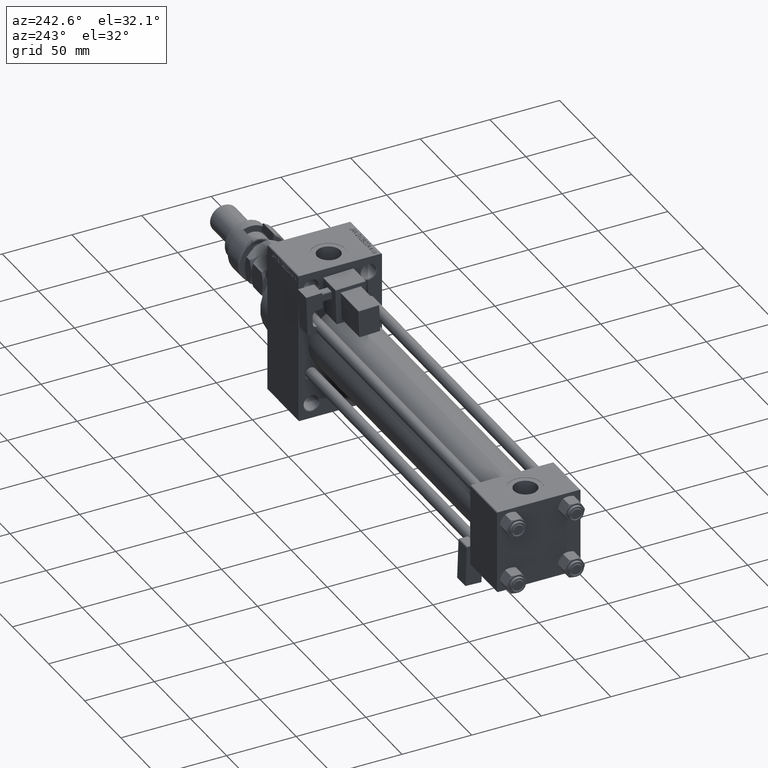
[diagram: clean part render]
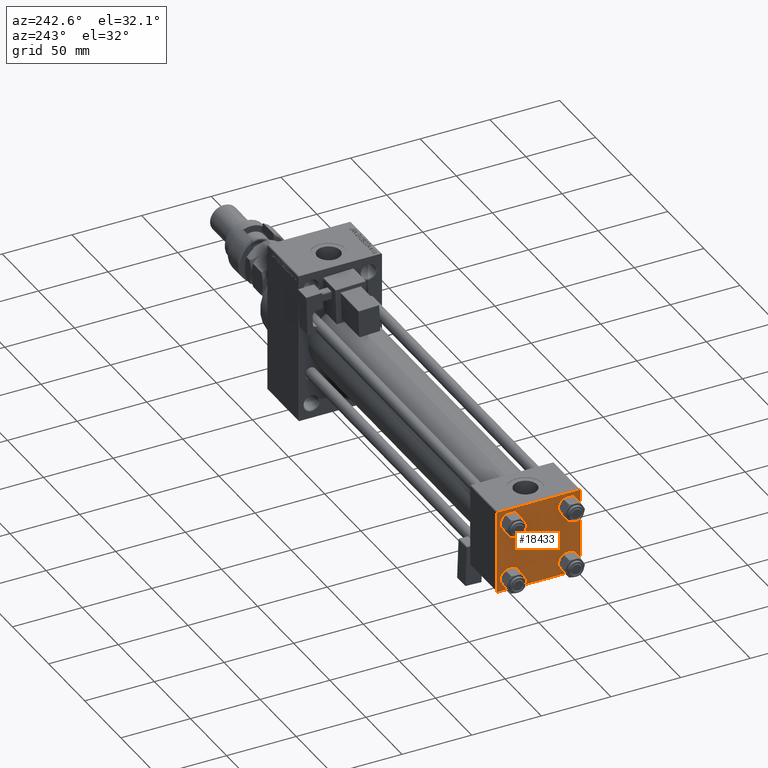
[diagram: same view with one face highlighted and labeled with its STEP entity id]
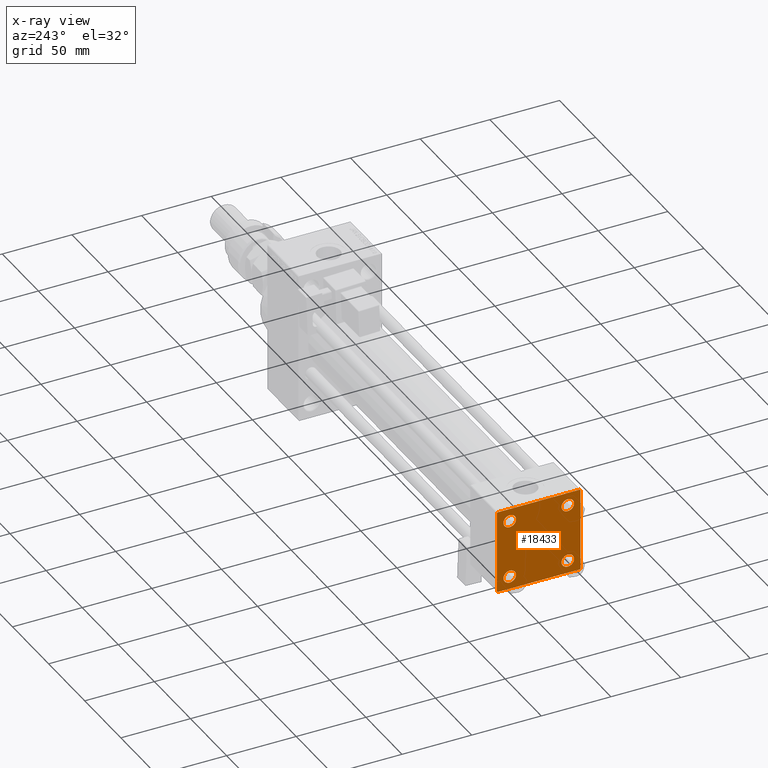
[diagram: x-ray of the same camera — body ghosted, the highlighted face saturated]
A machine part, auxiliary view. The second image highlights one B-rep face of the part: STEP entity #18433.
The next image is the same camera in x-ray: the body ghosted, the highlighted face saturated — about 0% of this face is hidden behind the body in this view.
In plain terms, the highlighted planar face has unit normal (-1, 0, 0).
Its self-contained STEP definition (entity closure, byte-faithful):
#637 = CARTESIAN_POINT ( 'NONE',  ( 0.000000000000000000, 29.99999999999999289, -29.50000000000000000 ) ) ;
#1229 = VERTEX_POINT ( 'NONE', #40082 ) ;
#1739 = ORIENTED_EDGE ( 'NONE', *, *, #28692, .T. ) ;
#3316 = CARTESIAN_POINT ( 'NONE',  ( 0.000000000000000000, -20.84999999999999076, 20.85000000000000497 ) ) ;
#4078 = VECTOR ( 'NONE', #45831, 999.9999999999998863 ) ;
#4770 = VECTOR ( 'NONE', #28016, 1000.000000000000000 ) ;
#5150 = ORIENTED_EDGE ( 'NONE', *, *, #5218, .T. ) ;
#5218 = EDGE_CURVE ( 'NONE', #51458, #8310, #12513, .T. ) ;
#5268 = CARTESIAN_POINT ( 'NONE',  ( 0.000000000000000000, -20.84999999999999076, -25.35000000000002274 ) ) ;
#5478 = VERTEX_POINT ( 'NONE', #5518 ) ;
#5518 = CARTESIAN_POINT ( 'NONE',  ( 0.000000000000000000, 29.99999999999999289, 29.50000000000000000 ) ) ;
#5592 = CARTESIAN_POINT ( 'NONE',  ( 0.000000000000000000, 0.000000000000000000, 0.000000000000000000 ) ) ;
#5783 = AXIS2_PLACEMENT_3D ( 'NONE', #5592, #32987, #22085 ) ;
#5885 = VERTEX_POINT ( 'NONE', #31935 ) ;
#6847 = CARTESIAN_POINT ( 'NONE',  ( 0.000000000000000000, 20.84999999999999787, -16.34999999999998366 ) ) ;
#7368 = DIRECTION ( 'NONE',  ( 0.000000000000000000, 0.000000000000000000, 1.000000000000000000 ) ) ;
#7552 = AXIS2_PLACEMENT_3D ( 'NONE', #3316, #19271, #32300 ) ;
#7745 = DIRECTION ( 'NONE',  ( -0.000000000000000000, 0.7071067811865474617, 0.7071067811865474617 ) ) ;
#7812 = CARTESIAN_POINT ( 'NONE',  ( 0.000000000000000000, 29.99999999999999289, -30.00000000000000000 ) ) ;
#8074 = LINE ( 'NONE', #7812, #4770 ) ;
#8310 = VERTEX_POINT ( 'NONE', #8674 ) ;
#8585 = VECTOR ( 'NONE', #32919, 1000.000000000000114 ) ;
#8674 = CARTESIAN_POINT ( 'NONE',  ( 0.000000000000000000, -29.49999999999998579, 29.99999999999999289 ) ) ;
#8928 = DIRECTION ( 'NONE',  ( 1.000000000000000000, -0.000000000000000000, 0.000000000000000000 ) ) ;
#9525 = CIRCLE ( 'NONE', #41825, 4.500000000000017764 ) ;
#9831 = FACE_BOUND ( 'NONE', #19776, .T. ) ;
#10958 = DIRECTION ( 'NONE',  ( 0.000000000000000000, -0.7071067811865474617, 0.7071067811865474617 ) ) ;
#11034 = LINE ( 'NONE', #48251, #35547 ) ;
#11347 = EDGE_LOOP ( 'NONE', ( #42246, #11751, #1739, #14635, #15140, #5150, #27904, #28941 ) ) ;
#11605 = LINE ( 'NONE', #39786, #36600 ) ;
#11751 = ORIENTED_EDGE ( 'NONE', *, *, #16396, .T. ) ;
#11796 = CARTESIAN_POINT ( 'NONE',  ( 0.000000000000000000, 29.99999999999999289, 30.00000000000000000 ) ) ;
#12073 = VERTEX_POINT ( 'NONE', #34018 ) ;
#12494 = EDGE_CURVE ( 'NONE', #43451, #8310, #39714, .T. ) ;
#12513 = LINE ( 'NONE', #40961, #18177 ) ;
#13298 = FACE_BOUND ( 'NONE', #18279, .T. ) ;
#13905 = CARTESIAN_POINT ( 'NONE',  ( 0.000000000000000000, 29.74999999999957723, -29.75000000000040501 ) ) ;
#14635 = ORIENTED_EDGE ( 'NONE', *, *, #30836, .T. ) ;
#14788 = DIRECTION ( 'NONE',  ( 0.000000000000000000, 0.000000000000000000, -1.000000000000000000 ) ) ;
#15037 = CIRCLE ( 'NONE', #44795, 4.500000000000017764 ) ;
#15140 = ORIENTED_EDGE ( 'NONE', *, *, #50966, .F. ) ;
#16396 = EDGE_CURVE ( 'NONE', #33656, #33107, #34367, .T. ) ;
#16575 = VECTOR ( 'NONE', #10958, 1000.000000000000114 ) ;
#16706 = CARTESIAN_POINT ( 'NONE',  ( 0.000000000000000000, 29.74999999999999645, 29.74999999999999645 ) ) ;
#16822 = AXIS2_PLACEMENT_3D ( 'NONE', #50495, #37742, #49704 ) ;
#16986 = DIRECTION ( 'NONE',  ( 1.000000000000000000, -0.000000000000000000, 0.000000000000000000 ) ) ;
#17053 = VERTEX_POINT ( 'NONE', #29208 ) ;
#17786 = ORIENTED_EDGE ( 'NONE', *, *, #46217, .T. ) ;
#17986 = CARTESIAN_POINT ( 'NONE',  ( 0.000000000000000000, 20.84999999999999787, -20.85000000000000142 ) ) ;
#18177 = VECTOR ( 'NONE', #7745, 1000.000000000000114 ) ;
#18279 = EDGE_LOOP ( 'NONE', ( #37584, #17786 ) ) ;
#18309 = CARTESIAN_POINT ( 'NONE',  ( 0.000000000000000000, 20.84999999999999787, 20.85000000000000142 ) ) ;
#18433 = ADVANCED_FACE ( 'NONE', ( #9831, #13298, #25798, #49456, #37758 ), #49198, .T. ) ;
#19056 = ORIENTED_EDGE ( 'NONE', *, *, #49225, .T. ) ;
#19237 = DIRECTION ( 'NONE',  ( 0.000000000000000000, -1.000000000000000000, -1.156482317317871725E-16 ) ) ;
#19271 = DIRECTION ( 'NONE',  ( 1.000000000000000000, -0.000000000000000000, 0.000000000000000000 ) ) ;
#19345 = DIRECTION ( 'NONE',  ( 0.000000000000000000, 0.000000000000000000, 1.000000000000000000 ) ) ;
#19454 = EDGE_CURVE ( 'NONE', #12073, #30894, #42593, .T. ) ;
#19776 = EDGE_LOOP ( 'NONE', ( #49016, #36475 ) ) ;
#20355 = ORIENTED_EDGE ( 'NONE', *, *, #20645, .T. ) ;
#20356 = DIRECTION ( 'NONE',  ( 0.000000000000000000, 0.000000000000000000, 1.000000000000000000 ) ) ;
#20645 = EDGE_CURVE ( 'NONE', #25113, #44727, #9525, .T. ) ;
#22085 = DIRECTION ( 'NONE',  ( -0.000000000000000000, 0.000000000000000000, 1.000000000000000000 ) ) ;
#22198 = CARTESIAN_POINT ( 'NONE',  ( 0.000000000000000000, -29.50000000000000000, -30.00000000000000711 ) ) ;
#22415 = CARTESIAN_POINT ( 'NONE',  ( 0.000000000000000000, -20.84999999999999076, 16.34999999999998721 ) ) ;
#23588 = CARTESIAN_POINT ( 'NONE',  ( 0.000000000000000000, 20.84999999999999787, -20.85000000000000142 ) ) ;
#24071 = CARTESIAN_POINT ( 'NONE',  ( 0.000000000000000000, -20.84999999999999076, -20.85000000000000497 ) ) ;
#24221 = CIRCLE ( 'NONE', #47959, 4.500000000000017764 ) ;
#24899 = VERTEX_POINT ( 'NONE', #39133 ) ;
#24916 = DIRECTION ( 'NONE',  ( 0.000000000000000000, 0.000000000000000000, 1.000000000000000000 ) ) ;
#25113 = VERTEX_POINT ( 'NONE', #45759 ) ;
#25798 = FACE_BOUND ( 'NONE', #29392, .T. ) ;
#26469 = EDGE_CURVE ( 'NONE', #44727, #25113, #24221, .T. ) ;
#26582 = ORIENTED_EDGE ( 'NONE', *, *, #34558, .T. ) ;
#27515 = DIRECTION ( 'NONE',  ( 0.000000000000000000, 0.000000000000000000, -1.000000000000000000 ) ) ;
#27904 = ORIENTED_EDGE ( 'NONE', *, *, #12494, .F. ) ;
#28016 = DIRECTION ( 'NONE',  ( 0.000000000000000000, -1.000000000000000000, -1.156482317317871725E-16 ) ) ;
#28692 = EDGE_CURVE ( 'NONE', #33107, #49037, #8074, .T. ) ;
#28941 = ORIENTED_EDGE ( 'NONE', *, *, #43043, .T. ) ;
#29208 = CARTESIAN_POINT ( 'NONE',  ( 0.000000000000000000, -30.00000000000000000, -29.50000000000001776 ) ) ;
#29392 = EDGE_LOOP ( 'NONE', ( #39725, #20355 ) ) ;
#30658 = VERTEX_POINT ( 'NONE', #5268 ) ;
#30780 = DIRECTION ( 'NONE',  ( 1.000000000000000000, -0.000000000000000000, 0.000000000000000000 ) ) ;
#30836 = EDGE_CURVE ( 'NONE', #49037, #17053, #46858, .T. ) ;
#30894 = VERTEX_POINT ( 'NONE', #22415 ) ;
#31935 = CARTESIAN_POINT ( 'NONE',  ( 0.000000000000000000, 20.84999999999999787, 25.35000000000001918 ) ) ;
#32300 = DIRECTION ( 'NONE',  ( 0.000000000000000000, 0.000000000000000000, 1.000000000000000000 ) ) ;
#32358 = DIRECTION ( 'NONE',  ( 1.000000000000000000, -0.000000000000000000, 0.000000000000000000 ) ) ;
#32919 = DIRECTION ( 'NONE',  ( 0.000000000000000000, 0.7071067811865474617, -0.7071067811865474617 ) ) ;
#32987 = DIRECTION ( 'NONE',  ( -1.000000000000000000, 0.000000000000000000, -0.000000000000000000 ) ) ;
#33107 = VERTEX_POINT ( 'NONE', #50269 ) ;
#33404 = DIRECTION ( 'NONE',  ( 1.000000000000000000, -0.000000000000000000, 0.000000000000000000 ) ) ;
#33656 = VERTEX_POINT ( 'NONE', #637 ) ;
#34018 = CARTESIAN_POINT ( 'NONE',  ( 0.000000000000000000, -20.84999999999999076, 25.35000000000002274 ) ) ;
#34367 = LINE ( 'NONE', #13905, #4078 ) ;
#34558 = EDGE_CURVE ( 'NONE', #5885, #1229, #15037, .T. ) ;
#35547 = VECTOR ( 'NONE', #27515, 1000.000000000000000 ) ;
#36475 = ORIENTED_EDGE ( 'NONE', *, *, #51022, .T. ) ;
#36600 = VECTOR ( 'NONE', #14788, 1000.000000000000000 ) ;
#36635 = AXIS2_PLACEMENT_3D ( 'NONE', #45699, #16986, #49408 ) ;
#36852 = CARTESIAN_POINT ( 'NONE',  ( 0.000000000000000000, -20.84999999999999076, -20.85000000000000497 ) ) ;
#36901 = LINE ( 'NONE', #16706, #8585 ) ;
#37584 = ORIENTED_EDGE ( 'NONE', *, *, #44321, .T. ) ;
#37742 = DIRECTION ( 'NONE',  ( 1.000000000000000000, -0.000000000000000000, 0.000000000000000000 ) ) ;
#37758 = FACE_OUTER_BOUND ( 'NONE', #11347, .T. ) ;
#37841 = CIRCLE ( 'NONE', #40390, 4.500000000000017764 ) ;
#39133 = CARTESIAN_POINT ( 'NONE',  ( 0.000000000000000000, -20.84999999999999076, -16.34999999999998721 ) ) ;
#39394 = CARTESIAN_POINT ( 'NONE',  ( 0.000000000000000000, -29.75000000000001066, -29.75000000000001066 ) ) ;
#39622 = AXIS2_PLACEMENT_3D ( 'NONE', #24071, #49306, #20356 ) ;
#39714 = LINE ( 'NONE', #11796, #40531 ) ;
#39725 = ORIENTED_EDGE ( 'NONE', *, *, #26469, .T. ) ;
#39786 = CARTESIAN_POINT ( 'NONE',  ( 0.000000000000000000, 29.99999999999999289, 30.00000000000000000 ) ) ;
#39815 = CIRCLE ( 'NONE', #7552, 4.500000000000017764 ) ;
#40082 = CARTESIAN_POINT ( 'NONE',  ( 0.000000000000000000, 20.84999999999999787, 16.34999999999998366 ) ) ;
#40390 = AXIS2_PLACEMENT_3D ( 'NONE', #36852, #8928, #49078 ) ;
#40531 = VECTOR ( 'NONE', #19237, 1000.000000000000000 ) ;
#40584 = CARTESIAN_POINT ( 'NONE',  ( 0.000000000000000000, 29.49999999999999289, 30.00000000000000000 ) ) ;
#40961 = CARTESIAN_POINT ( 'NONE',  ( -0.000000000000000000, -29.74999999999999645, 29.74999999999999645 ) ) ;
#41825 = AXIS2_PLACEMENT_3D ( 'NONE', #17986, #33404, #24916 ) ;
#42182 = CIRCLE ( 'NONE', #39622, 4.500000000000017764 ) ;
#42246 = ORIENTED_EDGE ( 'NONE', *, *, #43274, .T. ) ;
#42593 = CIRCLE ( 'NONE', #36635, 4.500000000000017764 ) ;
#43043 = EDGE_CURVE ( 'NONE', #43451, #5478, #36901, .T. ) ;
#43274 = EDGE_CURVE ( 'NONE', #5478, #33656, #11605, .T. ) ;
#43451 = VERTEX_POINT ( 'NONE', #40584 ) ;
#44321 = EDGE_CURVE ( 'NONE', #24899, #30658, #37841, .T. ) ;
#44727 = VERTEX_POINT ( 'NONE', #6847 ) ;
#44795 = AXIS2_PLACEMENT_3D ( 'NONE', #18309, #30780, #19345 ) ;
#45515 = CARTESIAN_POINT ( 'NONE',  ( 0.000000000000000000, -30.00000000000000000, 29.49999999999999289 ) ) ;
#45699 = CARTESIAN_POINT ( 'NONE',  ( 0.000000000000000000, -20.84999999999999076, 20.85000000000000497 ) ) ;
#45759 = CARTESIAN_POINT ( 'NONE',  ( 0.000000000000000000, 20.84999999999999787, -25.35000000000001918 ) ) ;
#45831 = DIRECTION ( 'NONE',  ( -0.000000000000000000, -0.7071067811865574537, -0.7071067811865376918 ) ) ;
#46217 = EDGE_CURVE ( 'NONE', #30658, #24899, #42182, .T. ) ;
#46858 = LINE ( 'NONE', #39394, #16575 ) ;
#47959 = AXIS2_PLACEMENT_3D ( 'NONE', #23588, #32358, #7368 ) ;
#48251 = CARTESIAN_POINT ( 'NONE',  ( 0.000000000000000000, -30.00000000000000000, 29.99999999999999289 ) ) ;
#49016 = ORIENTED_EDGE ( 'NONE', *, *, #19454, .T. ) ;
#49037 = VERTEX_POINT ( 'NONE', #22198 ) ;
#49078 = DIRECTION ( 'NONE',  ( 0.000000000000000000, 0.000000000000000000, 1.000000000000000000 ) ) ;
#49198 = PLANE ( 'NONE',  #5783 ) ;
#49225 = EDGE_CURVE ( 'NONE', #1229, #5885, #52484, .T. ) ;
#49306 = DIRECTION ( 'NONE',  ( 1.000000000000000000, -0.000000000000000000, 0.000000000000000000 ) ) ;
#49408 = DIRECTION ( 'NONE',  ( 0.000000000000000000, 0.000000000000000000, 1.000000000000000000 ) ) ;
#49456 = FACE_BOUND ( 'NONE', #50205, .T. ) ;
#49704 = DIRECTION ( 'NONE',  ( 0.000000000000000000, 0.000000000000000000, 1.000000000000000000 ) ) ;
#50205 = EDGE_LOOP ( 'NONE', ( #26582, #19056 ) ) ;
#50269 = CARTESIAN_POINT ( 'NONE',  ( 0.000000000000000000, 29.49999999999997868, -30.00000000000000000 ) ) ;
#50495 = CARTESIAN_POINT ( 'NONE',  ( 0.000000000000000000, 20.84999999999999787, 20.85000000000000142 ) ) ;
#50966 = EDGE_CURVE ( 'NONE', #51458, #17053, #11034, .T. ) ;
#51022 = EDGE_CURVE ( 'NONE', #30894, #12073, #39815, .T. ) ;
#51458 = VERTEX_POINT ( 'NONE', #45515 ) ;
#52484 = CIRCLE ( 'NONE', #16822, 4.500000000000017764 ) ;